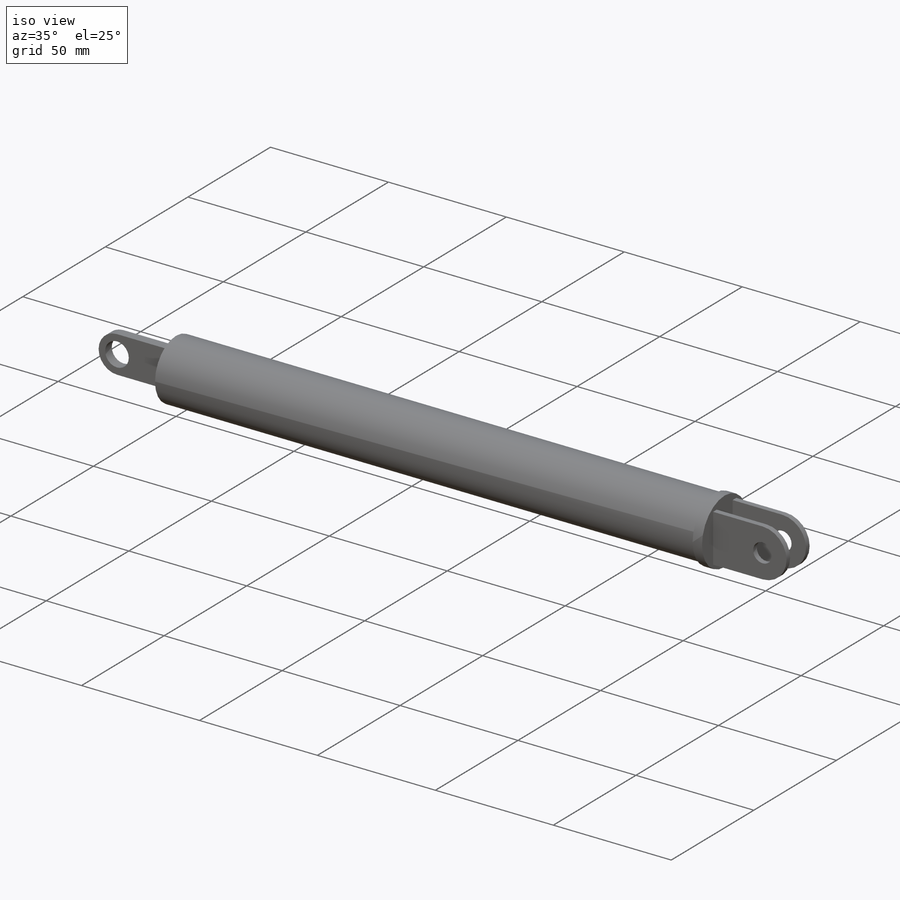
[diagram: iso view]
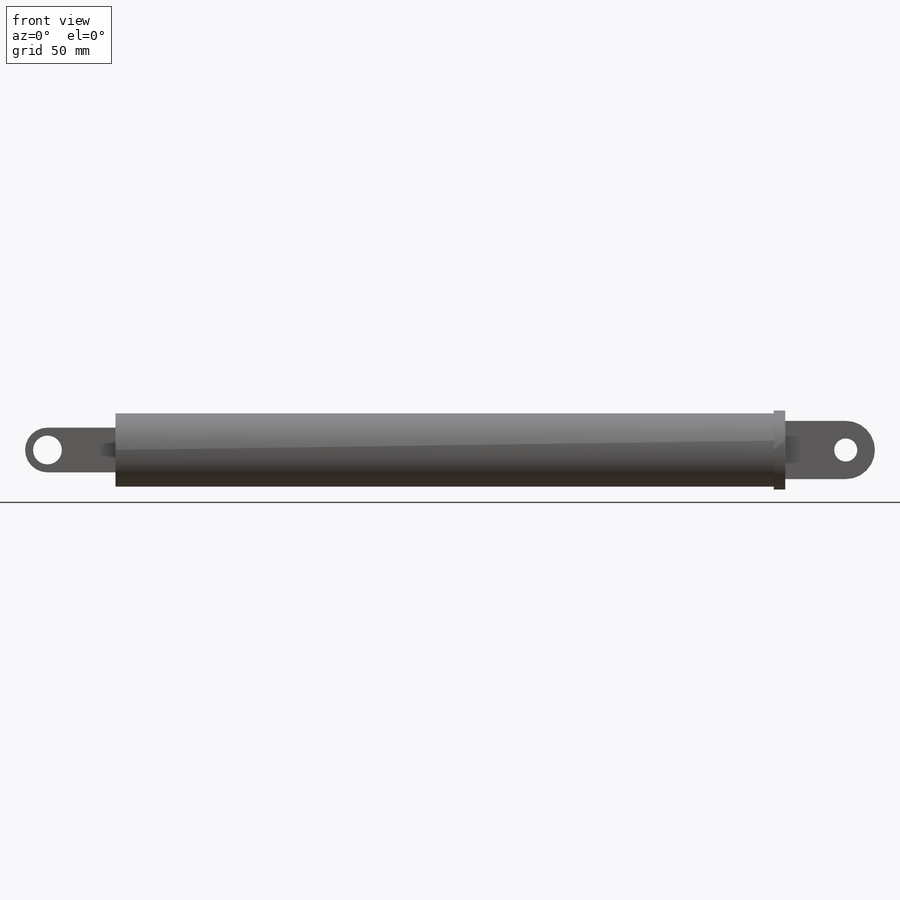
[diagram: front view]
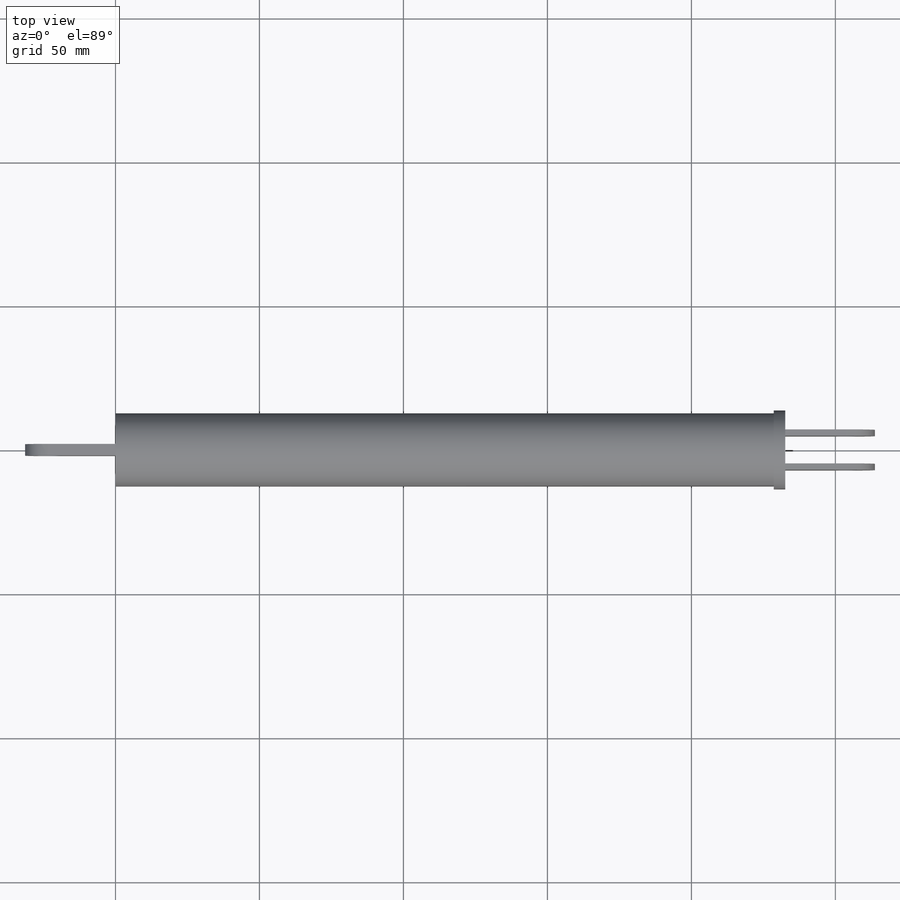
[diagram: top view]
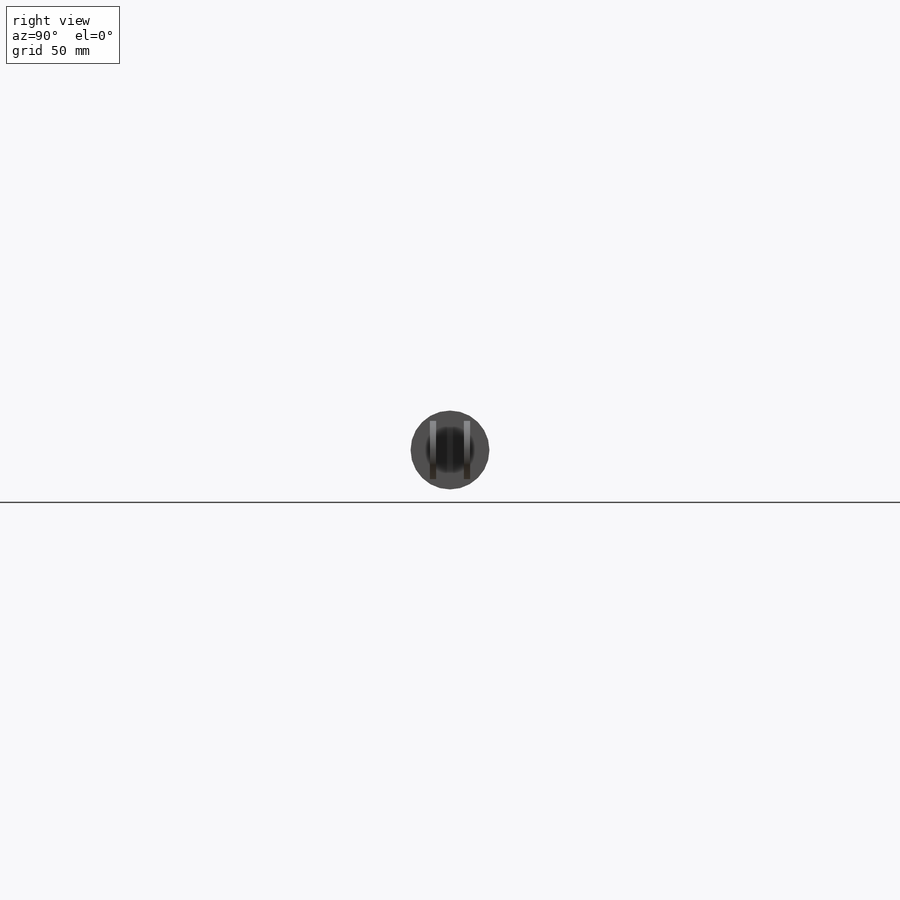
[diagram: right view]
SOLIDWORKS PART (.sldprt)
format: sldprt  version: not decoded by parser v0  size: 274,944 bytes
history: native  units: mm
features: sketch x6, extrude x5, material x1, cut_extrude x1 (+13 scaffold rows collapsed)
feature tree (26):
  scaffold x13  (default folders/planes/origin — collapsed)
  material  "Cast Stainless Steel"
  sketch  "Sketch1"  dims[D1=25.4mm]
  extrude  "Extrude1"  Depth=228.6mm
  sketch  "Sketch2"  dims[D1=10.0mm]
  extrude  "Extrude2"  Depth=4mm
  sketch  "Sketch3"  dims[D1=1.0mm]
  extrude  "Extrude3"  Depth=4mm
  sketch  "Sketch4"  dims[D1=8.0mm D2=21.0mm]
  extrude  "Extrude4"  Depth=14mm
  sketch  "Sketch5"
  cut_extrude  "Cut-Extrude1"  [1 undecoded]
  sketch  "Sketch6"  dims[D1=10.0mm]
  extrude  "Extrude5"  Depth=50mm
decode coverage: 10 of 12 modeling features carry decoded parameters
note: 1 parameter value undecoded
note: suppression state not decoded; provenance and decode notes live in map.json
